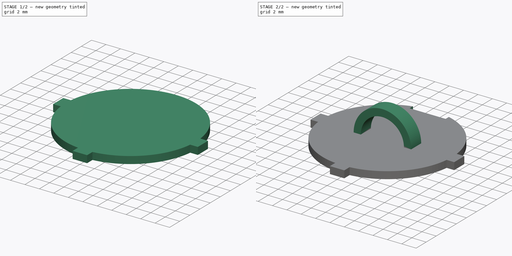
[diagram: build sequence overview — one tinted view per stage of 2, left to right]
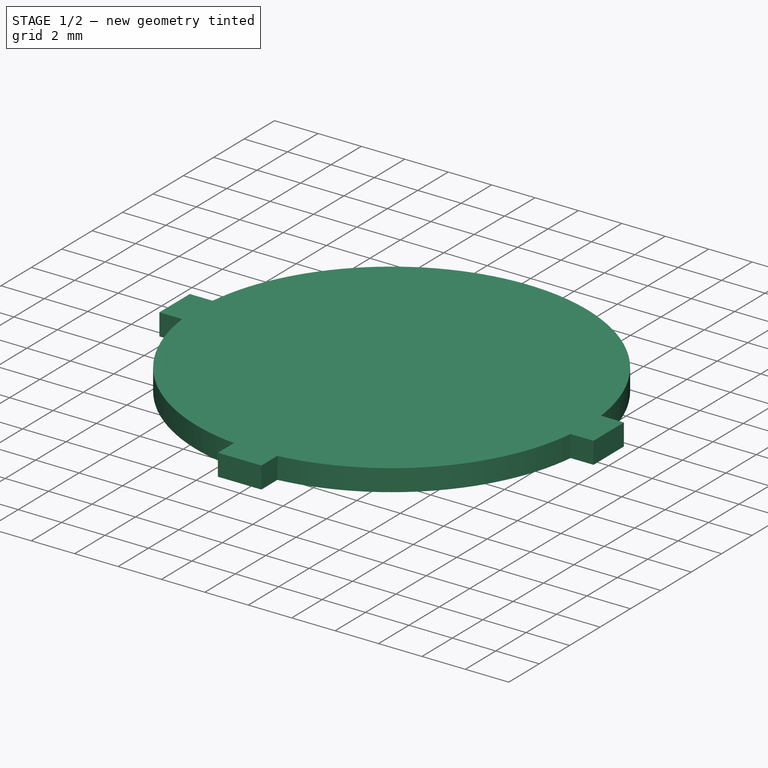
[diagram: stage 1 of 2 — iso view after this stage's code; geometry added in this stage tinted green]
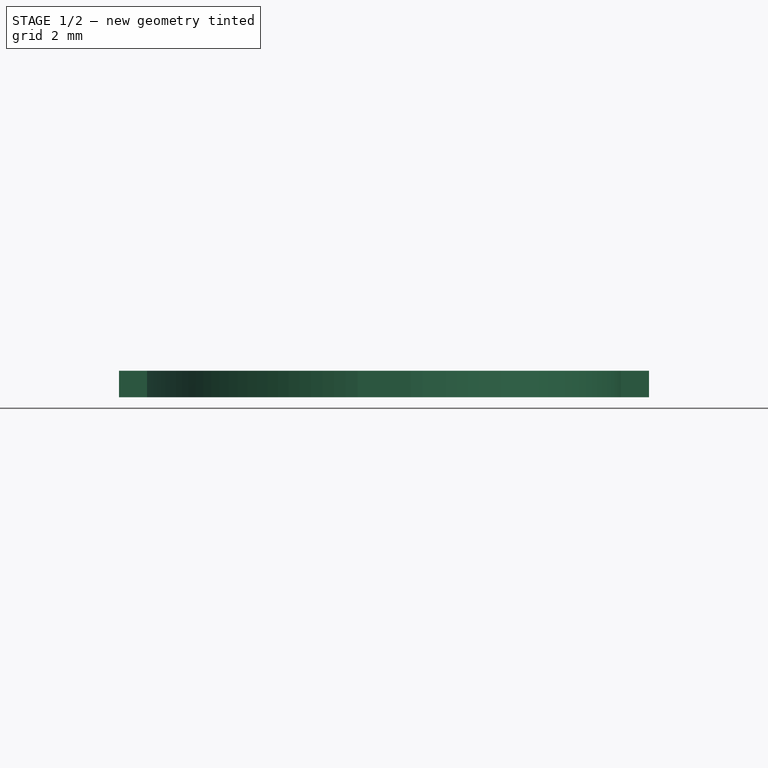
[diagram: stage 1 of 2 — front view after this stage's code; geometry added in this stage tinted green]
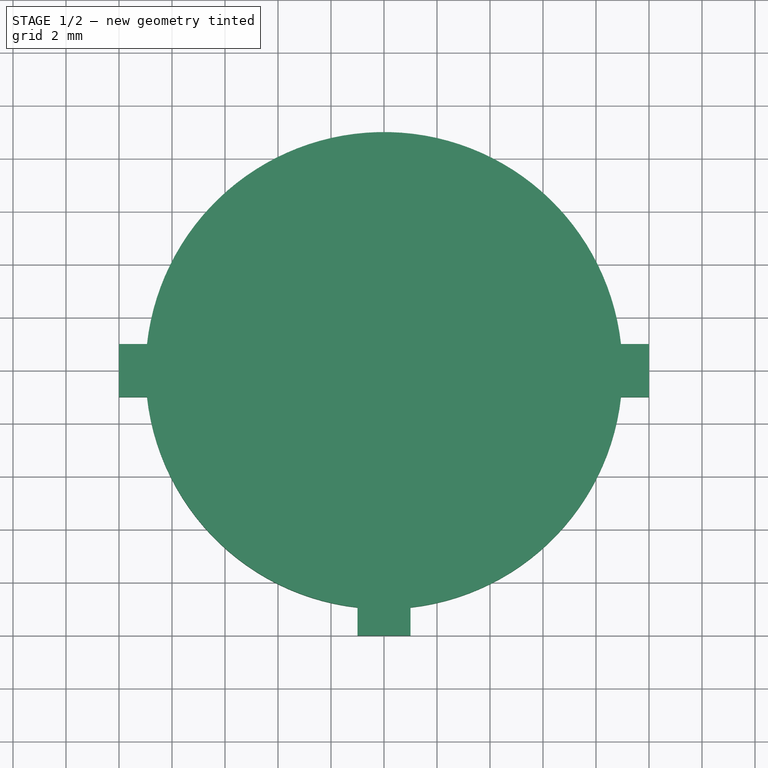
[diagram: stage 1 of 2 — top view after this stage's code; geometry added in this stage tinted green]
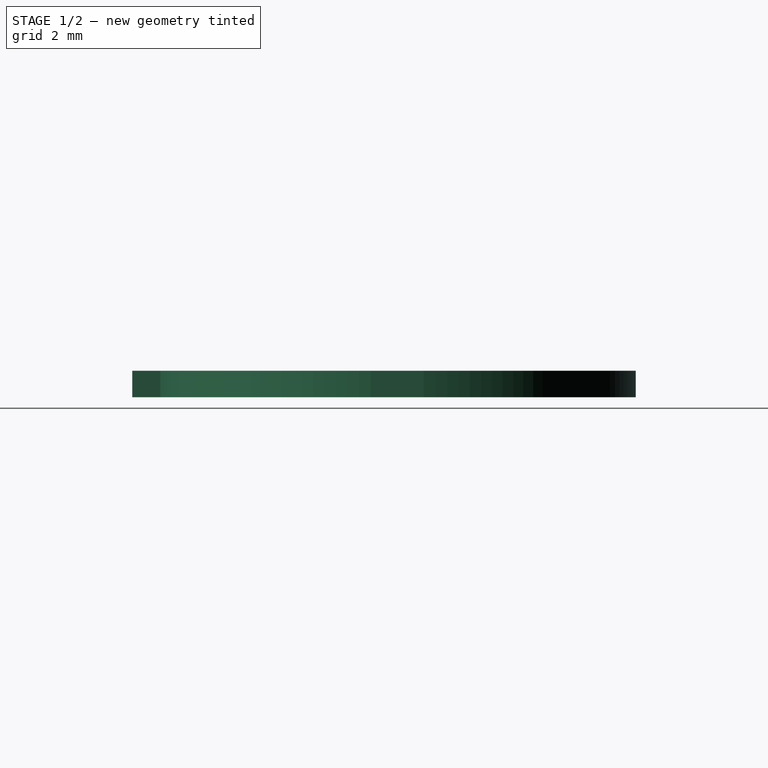
[diagram: stage 1 of 2 — right view after this stage's code; geometry added in this stage tinted green]
FCSTD DOCUMENT  (FreeCAD 0.18.4R)
Label: impeller-box-upside-cup
License: All rights reserved
LicenseURL: http://en.wikipedia.org/wiki/All_rights_reserved
objects: Sketcher::SketchObject×5, PartDesign::Pad×2, PartDesign::Pocket×1, PartDesign::Revolution×1, PartDesign::Body×1
note: 14 computed .brp shape members not serialized (recipe doc carries the construction recipe); baked Part::Feature solids carry a one-line shape summary decoded from their .brp

FEATURE [Sketcher::SketchObject] Sketch
  MapMode = 5
  Support = -> [XY_Plane]
  sketch-geometry (1):
    g0: Circle CenterX=0 CenterY=0 CenterZ=0 NormalX=0 NormalY=0 NormalZ=1 AngleXU=0 Radius=9
  constraints (2):
    c: Coincident(g-1,g0)
    c: Radius(g0) = 9
FEATURE [Sketcher::SketchObject] Sketch001
  MapMode = 5
  Support = -> [XY_Plane]
  sketch-geometry (1):
    g0: Circle CenterX=0 CenterY=0 CenterZ=0 NormalX=0 NormalY=0 NormalZ=1 AngleXU=0 Radius=9
  constraints (2):
    c: Radius(g0) = 9
    c: Coincident(g-1,g0)
FEATURE [PartDesign::Pad] Pad
  Length = 1
  Length2 = 100
  Profile = -> Sketch001
  Type = 0
FEATURE [Sketcher::SketchObject] Sketch002
  MapMode = 5
  Support = -> [XY_Plane]
  sketch-geometry (8):
    g0: LineSegment StartX=-10 StartY=1 StartZ=0 EndX=10 EndY=1 EndZ=0
    g1: LineSegment StartX=10 StartY=1 StartZ=0 EndX=10 EndY=-1 EndZ=0
    g2: LineSegment StartX=10 StartY=-1 StartZ=0 EndX=1 EndY=-1 EndZ=0
    g3: LineSegment StartX=1 StartY=-1 StartZ=0 EndX=1 EndY=-10 EndZ=0
    g4: LineSegment StartX=1 StartY=-10 StartZ=0 EndX=-1 EndY=-10 EndZ=0
    g5: LineSegment StartX=-1 StartY=-10 StartZ=0 EndX=-1 EndY=-1 EndZ=0
    g6: LineSegment StartX=-1 StartY=-1 StartZ=0 EndX=-10 EndY=-1 EndZ=0
    g7: LineSegment StartX=-10 StartY=-1 StartZ=0 EndX=-10 EndY=1 EndZ=0
  constraints (24):
    c: Coincident(g0,g1)
    c: Coincident(g1,g2)
    c: Coincident(g2,g3)
    c: Coincident(g3,g4)
    c: Coincident(g4,g5)
    c: Coincident(g5,g6)
    c: Coincident(g6,g7)
    c: Coincident(g7,g0)
    c: Horizontal(g0)
    c: Horizontal(g2)
    c: Horizontal(g6)
    c: Horizontal(g4)
    c: Vertical(g1)
    c: Vertical(g3)
    c: Vertical(g5)
    c: Vertical(g7)
    c: DistanceY(g1,g1) = 2
    c: DistanceY(g7,g7) = 2
    c: DistanceY(g-1,g0) = 1
    c: DistanceY(g3,g-1) = 10
    c: DistanceX(g4,g4) = 2
    c: DistanceX(g4,g-1) = 1
    c: DistanceX(g0,g-1) = 10
    c: DistanceX(g-1,g0) = 10
FEATURE [PartDesign::Pad] Pad001
  BaseFeature = -> Pad
  Length = 1
  Length2 = 100
  Profile = -> Sketch002
  Type = 0
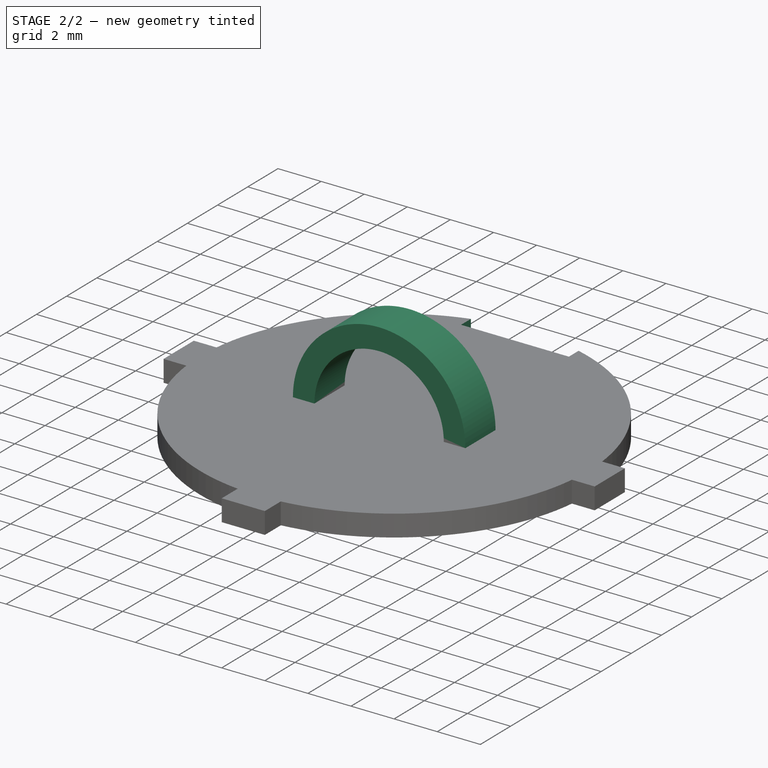
[diagram: stage 2 of 2 — iso view after this stage's code; geometry added in this stage tinted green]
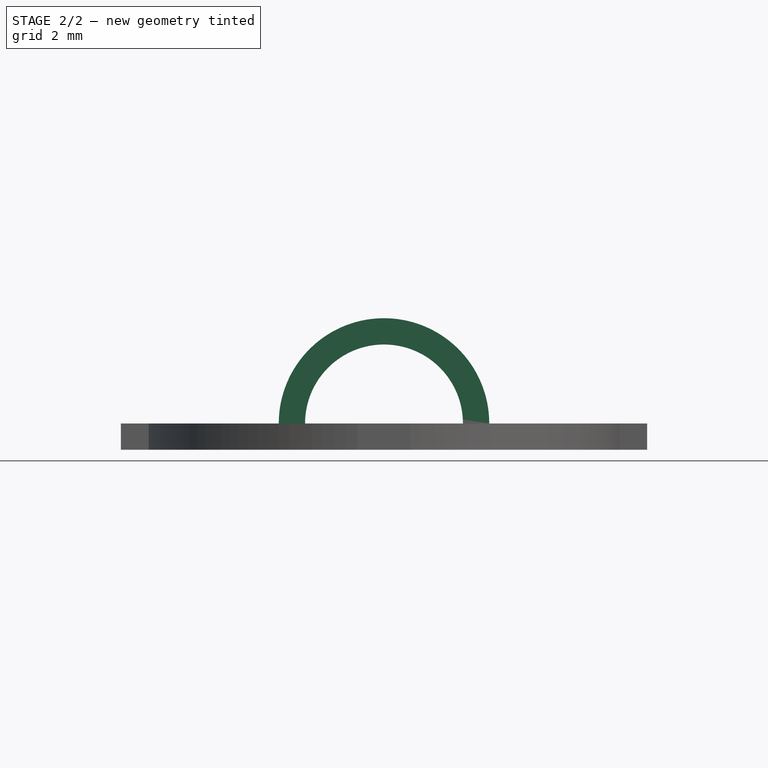
[diagram: stage 2 of 2 — front view after this stage's code; geometry added in this stage tinted green]
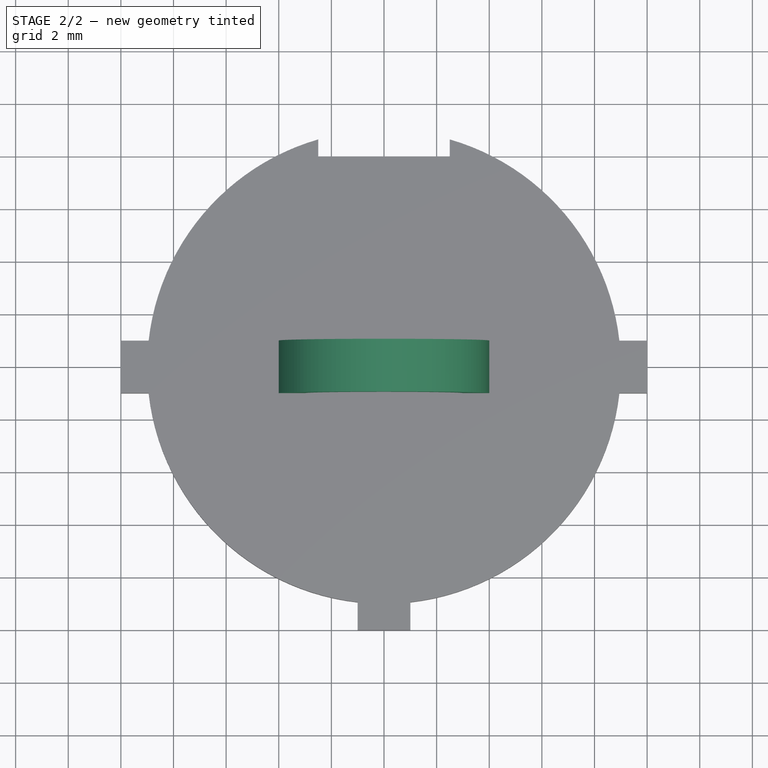
[diagram: stage 2 of 2 — top view after this stage's code; geometry added in this stage tinted green]
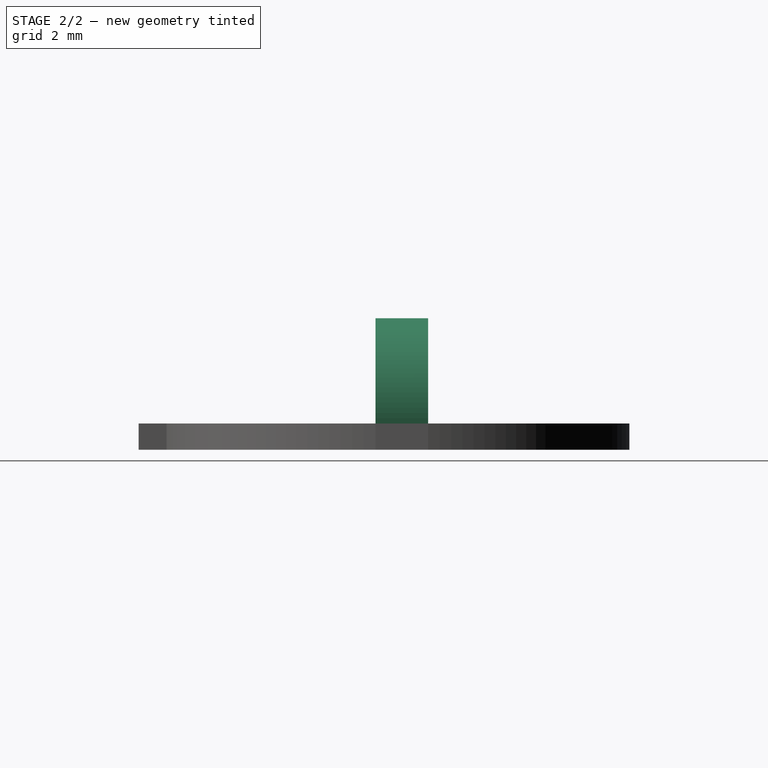
[diagram: stage 2 of 2 — right view after this stage's code; geometry added in this stage tinted green]
FEATURE [Sketcher::SketchObject] Sketch003
  MapMode = 5
  Placement = pos=(0,0,1) rot=(0,0,1;0rad)
  Support = -> [Pad001]
  sketch-geometry (4):
    g0: LineSegment StartX=-2.5 StartY=13 StartZ=0 EndX=2.5 EndY=13 EndZ=0
    g1: LineSegment StartX=2.5 StartY=13 StartZ=0 EndX=2.5 EndY=8 EndZ=0
    g2: LineSegment StartX=2.5 StartY=8 StartZ=0 EndX=-2.5 EndY=8 EndZ=0
    g3: LineSegment StartX=-2.5 StartY=8 StartZ=0 EndX=-2.5 EndY=13 EndZ=0
  constraints (12):
    c: Coincident(g0,g1)
    c: Coincident(g1,g2)
    c: Coincident(g2,g3)
    c: Coincident(g3,g0)
    c: Horizontal(g0)
    c: Horizontal(g2)
    c: Vertical(g1)
    c: Vertical(g3)
    c: DistanceX(g0,g0) = 5
    c: DistanceX(g2,g-1) = 2.5
    c: DistanceY(g1,g1) = 5
    c: DistanceY(g-1,g1) = 8
FEATURE [PartDesign::Pocket] Pocket
  BaseFeature = -> Pad001
  Length = 5
  Length2 = 100
  Profile = -> Sketch003
  Type = 0
FEATURE [Sketcher::SketchObject] Sketch004
  AttachmentOffset = pos=(0,0,-1) rot=(0,0,1;0rad)
  MapMode = 5
  Placement = pos=(0,0,1) rot=(1,0,0;3.14159rad)
  Support = -> [Pocket]
  sketch-geometry (4):
    g0: LineSegment StartX=-4 StartY=1 StartZ=0 EndX=-3 EndY=1 EndZ=0
    g1: LineSegment StartX=-3 StartY=1 StartZ=0 EndX=-3 EndY=-1 EndZ=0
    g2: LineSegment StartX=-3 StartY=-1 StartZ=0 EndX=-4 EndY=-1 EndZ=0
    g3: LineSegment StartX=-4 StartY=-1 StartZ=0 EndX=-4 EndY=1 EndZ=0
  constraints (12):
    c: Coincident(g0,g1)
    c: Coincident(g1,g2)
    c: Coincident(g2,g3)
    c: Coincident(g3,g0)
    c: Horizontal(g0)
    c: Horizontal(g2)
    c: Vertical(g1)
    c: Vertical(g3)
    c: DistanceX(g0,g0) = 1
    c: DistanceX(g0,g-1) = 3
    c: DistanceY(g3,g3) = 2
    c: DistanceY(g-1,g0) = 1
FEATURE [PartDesign::Revolution] Revolution
  Angle = 180
  Axis = (0,-1,0)
  Base = (0,0,1)
  BaseFeature = -> Pocket
  Profile = -> Sketch004
  ReferenceAxis = -> Sketch004 [V_Axis]
  Reversed = true
FEATURE [PartDesign::Body] Body  label="cup"
  Group = -> [Sketch,Sketch001,Pad,Sketch002,Pad001,Sketch003,Pocket,Sketch004,Revolution]
  Origin = -> Origin
  Tip = -> Revolution
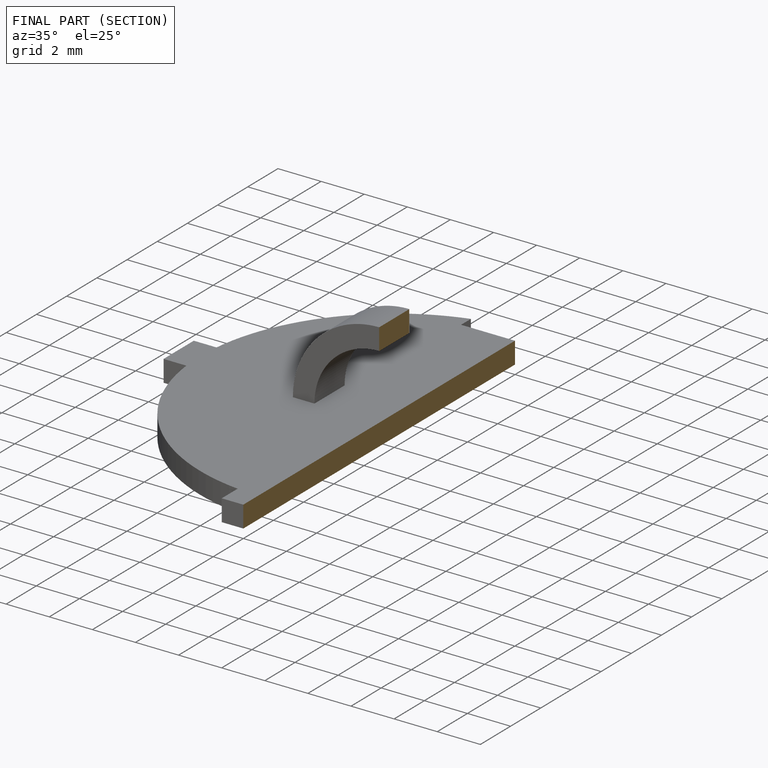
[diagram: finished part — half-section view (interior)]
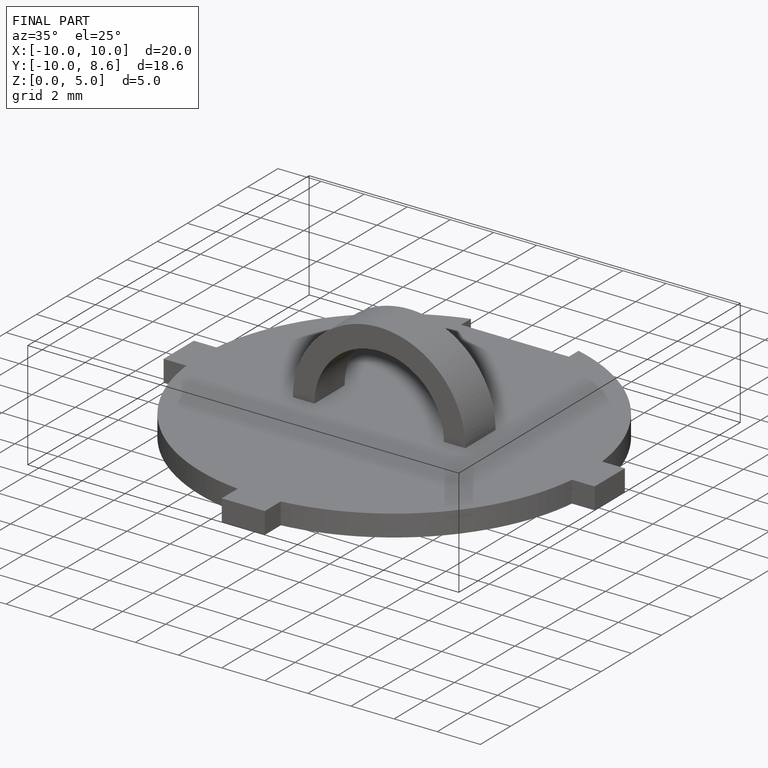
[diagram: finished part — iso view with bounding-box wireframe]
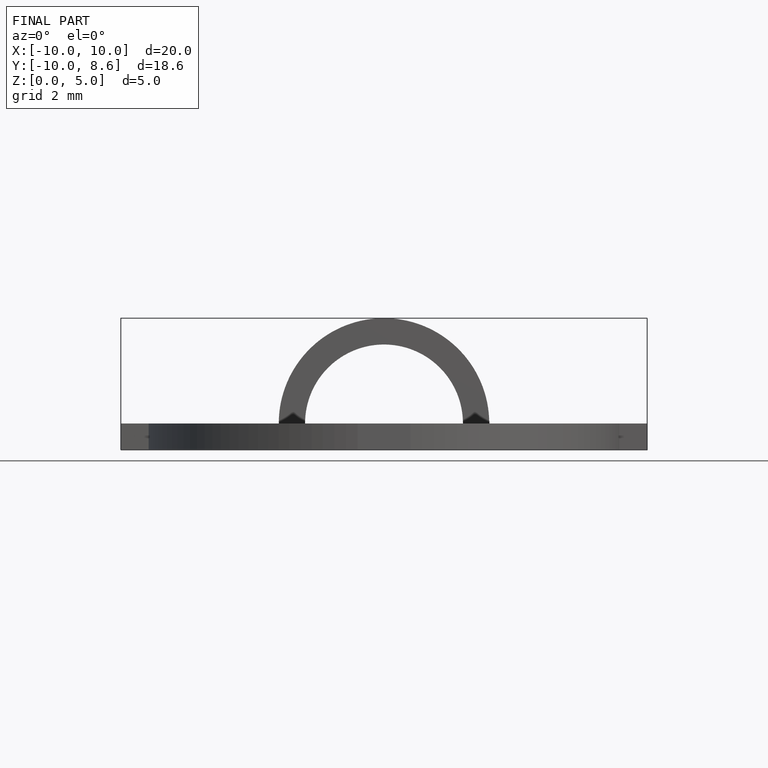
[diagram: finished part — front view with bounding-box wireframe]
